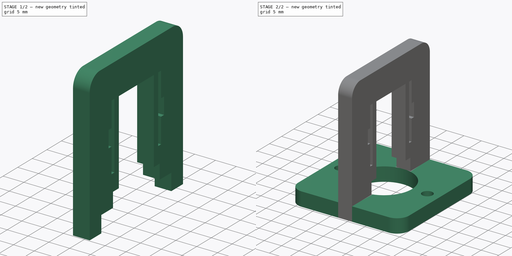
[diagram: build sequence overview — one tinted view per stage of 2, left to right]
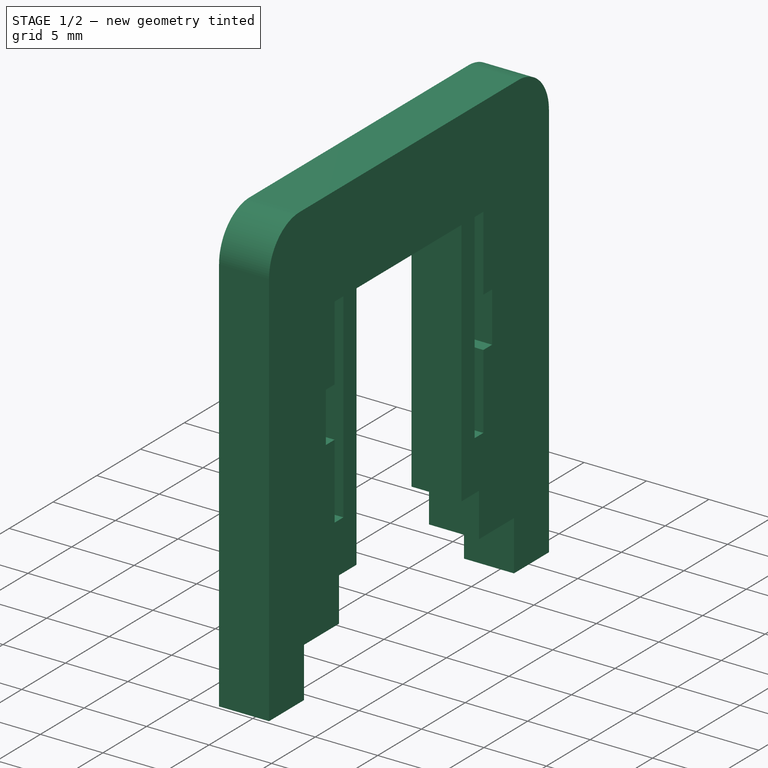
[diagram: stage 1 of 2 — iso view after this stage's code; geometry added in this stage tinted green]
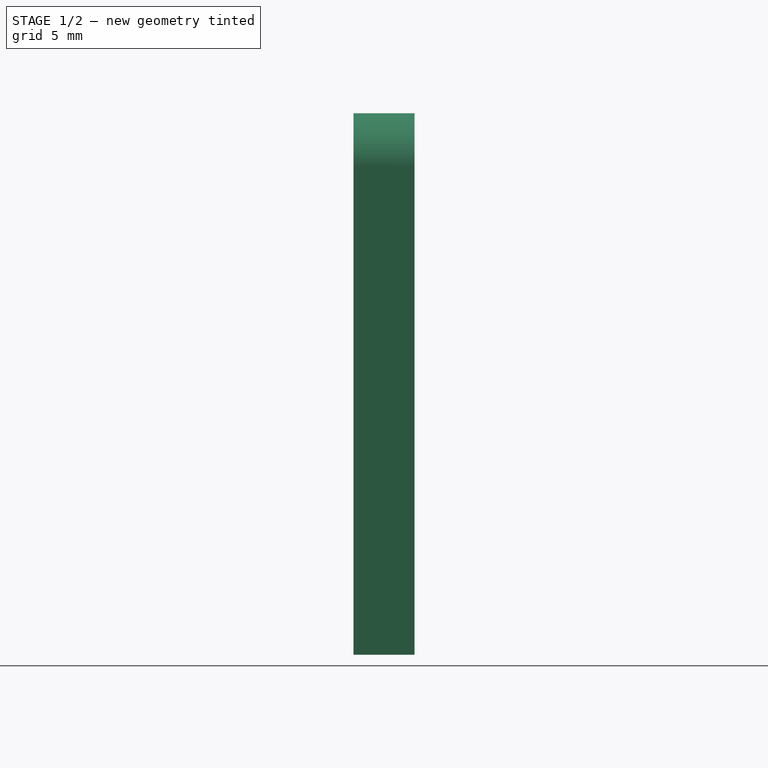
[diagram: stage 1 of 2 — front view after this stage's code; geometry added in this stage tinted green]
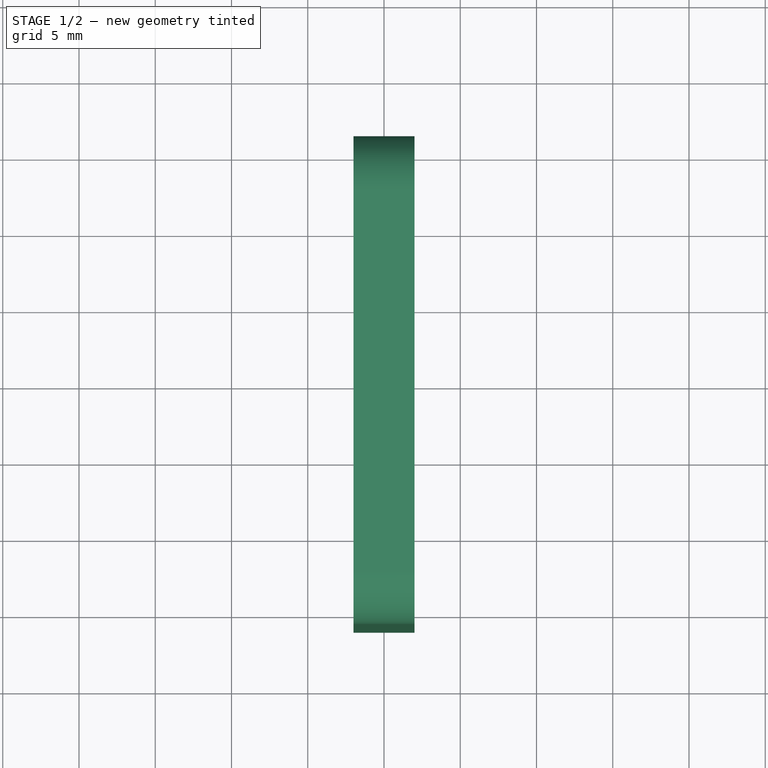
[diagram: stage 1 of 2 — top view after this stage's code; geometry added in this stage tinted green]
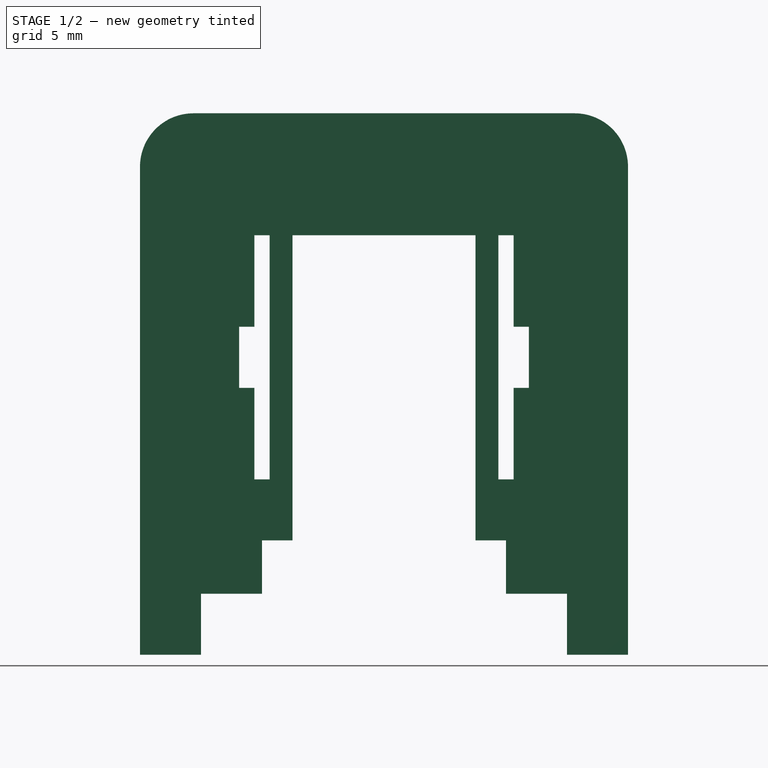
[diagram: stage 1 of 2 — right view after this stage's code; geometry added in this stage tinted green]
FCSTD DOCUMENT  (FreeCAD 0.19R24291 (Git))
Label: sibi_motor-mount
License: All rights reserved
LicenseURL: http://en.wikipedia.org/wiki/All_rights_reserved
objects: Sketcher::SketchObject×2, PartDesign::Pad×2, PartDesign::Body×2, App::Part×2, TechDraw::DrawViewPart×2, TechDraw::DrawSVGTemplate×1, TechDraw::DrawPage×1
note: 8 computed .brp shape members not serialized (recipe doc carries the construction recipe); baked Part::Feature solids carry a one-line shape summary decoded from their .brp

FEATURE [PartDesign::Body] Body
  Group = -> [Sketch,Pad]
  Origin = -> Origin001
  Tip = -> Pad
FEATURE [App::Part] Part  label="Baseplate"
  Group = -> [Body]
  Origin = -> Origin
FEATURE [Sketcher::SketchObject] Sketch002
  FullyConstrained = true
  MapMode = 5
  Placement = pos=(0,0,0) rot=(0.57735,0.57735,0.57735;2.0944rad)
  Support = -> [YZ_Plane005]
  sketch-geometry (34):
    g0: LineSegment StartX=-16 StartY=0 StartZ=0 EndX=-12 EndY=0 EndZ=0
    g1: LineSegment StartX=16 StartY=0 StartZ=0 EndX=16 EndY=32 EndZ=0
    g2: LineSegment StartX=12.5 StartY=35.5 StartZ=0 EndX=-12.5 EndY=35.5 EndZ=0
    g3: LineSegment StartX=-16 StartY=32 StartZ=0 EndX=-16 EndY=0 EndZ=0
    g4: LineSegment StartX=12 StartY=0 StartZ=0 EndX=12 EndY=4 EndZ=0
    g5: LineSegment StartX=12 StartY=4 StartZ=0 EndX=8 EndY=4 EndZ=0
    g6: LineSegment StartX=-12 StartY=4 StartZ=0 EndX=-12 EndY=0 EndZ=0
    g7: LineSegment StartX=12 StartY=0 StartZ=0 EndX=16 EndY=0 EndZ=0
    g8: LineSegment StartX=8 StartY=4 StartZ=0 EndX=8 EndY=7.5 EndZ=0
    g9: LineSegment StartX=8 StartY=7.5 StartZ=0 EndX=6 EndY=7.5 EndZ=0
    g10: LineSegment StartX=-8 StartY=7.5 StartZ=0 EndX=-8 EndY=4 EndZ=0
    g11: LineSegment StartX=6 StartY=7.5 StartZ=0 EndX=6 EndY=27.5 EndZ=0
    g12: LineSegment StartX=6 StartY=27.5 StartZ=0 EndX=-6 EndY=27.5 EndZ=0
    g13: LineSegment StartX=-6 StartY=27.5 StartZ=0 EndX=-6 EndY=7.5 EndZ=0
    g14: LineSegment StartX=-6 StartY=7.5 StartZ=0 EndX=-8 EndY=7.5 EndZ=0
    g15: LineSegment StartX=-8 StartY=4 StartZ=0 EndX=-12 EndY=4 EndZ=0
    g16: ArcOfCircle CenterX=12.5 CenterY=32 CenterZ=0 NormalX=0 NormalY=0 NormalZ=1 AngleXU=0 Radius=3.5 StartAngle=0 EndAngle=1.5708
    g17: ArcOfCircle CenterX=-12.5 CenterY=32 CenterZ=0 NormalX=0 NormalY=0 NormalZ=1 AngleXU=0 Radius=3.5 StartAngle=1.5708 EndAngle=3.14159
    g18: LineSegment StartX=-8.5 StartY=27.5 StartZ=0 EndX=-7.5 EndY=27.5 EndZ=0
    g19: LineSegment StartX=-7.5 StartY=27.5 StartZ=0 EndX=-7.5 EndY=11.5 EndZ=0
    g20: LineSegment StartX=-7.5 StartY=11.5 StartZ=0 EndX=-8.5 EndY=11.5 EndZ=0
    g21: LineSegment StartX=-8.5 StartY=11.5 StartZ=0 EndX=-8.5 EndY=17.5 EndZ=0
    g22: LineSegment StartX=7.5 StartY=27.5 StartZ=0 EndX=8.5 EndY=27.5 EndZ=0
    g23: LineSegment StartX=8.5 StartY=27.5 StartZ=0 EndX=8.5 EndY=21.5 EndZ=0
    g24: LineSegment StartX=8.5 StartY=11.5 StartZ=0 EndX=7.5 EndY=11.5 EndZ=0
    g25: LineSegment StartX=7.5 StartY=11.5 StartZ=0 EndX=7.5 EndY=27.5 EndZ=0
    g26: LineSegment StartX=-9.5 StartY=21.5 StartZ=0 EndX=-8.5 EndY=21.5 EndZ=0
    g27: LineSegment StartX=-8.5 StartY=17.5 StartZ=0 EndX=-9.5 EndY=17.5 EndZ=0
    g28: LineSegment StartX=-9.5 StartY=17.5 StartZ=0 EndX=-9.5 EndY=21.5 EndZ=0
    g29: LineSegment StartX=8.5 StartY=21.5 StartZ=0 EndX=9.5 EndY=21.5 EndZ=0
    g30: LineSegment StartX=9.5 StartY=21.5 StartZ=0 EndX=9.5 EndY=17.5 EndZ=0
    g31: LineSegment StartX=9.5 StartY=17.5 StartZ=0 EndX=8.5 EndY=17.5 EndZ=0
    g32: LineSegment StartX=-8.5 StartY=21.5 StartZ=0 EndX=-8.5 EndY=27.5 EndZ=0
    g33: LineSegment StartX=8.5 StartY=17.5 StartZ=0 EndX=8.5 EndY=11.5 EndZ=0
  constraints (89):
    c: Coincident(g7,g1)
    c: Coincident(g3,g0)
    c: Horizontal(g0)
    c: Horizontal(g2)
    c: Vertical(g1)
    c: Vertical(g3)
    c: Coincident(g4,g5)
    c: Coincident(g15,g6)
    c: Horizontal(g5)
    c: Vertical(g4)
    c: Vertical(g6)
    c: Coincident(g0,g6)
    c: Coincident(g7,g4)
    c: Tangent(g0,g7)
    c: Coincident(g8,g9)
    c: Coincident(g14,g10)
    c: Horizontal(g9)
    c: Vertical(g8)
    c: Vertical(g10)
    c: Coincident(g11,g12)
    c: Coincident(g12,g13)
    c: Horizontal(g12)
    c: Vertical(g11)
    c: Vertical(g13)
    c: Coincident(g9,g11)
    c: Coincident(g14,g13)
    c: Tangent(g9,g14)
    c: Tangent(g5,g15)
    c: Coincident(g10,g15)
    c: Coincident(g8,g5)
    c: Equal(g0,g7)
    c: Equal(g15,g5)
    c: Equal(g14,g9)
    c: DistanceX(g12,g12) = 12
    c: DistanceX(g10,g8) = 16
    c: DistanceX(g0,g0) = 4
    c: DistanceY(g4,g4) = 4
    c: DistanceY(g1,g8) = 7.5
    c: DistanceY(g1,g11) = 27.5
    c: Tangent(g2,g16) = -1.5708
    c: Tangent(g1,g16) = -1.5708
    c: Tangent(g2,g17) = -1.5708
    c: Tangent(g3,g17) = -1.5708
    c: Equal(g17,g16)
    c: DistanceX(g0,g1) = 32
    c: Symmetric(g0,g1,g-1)
    c: Radius(g16) = 3.5
    c: DistanceY(g11,g2) = 8
    c: Coincident(g18,g19)
    c: Coincident(g19,g20)
    c: Coincident(g20,g21)
    c: Coincident(g32,g18)
    c: Horizontal(g20)
    c: Vertical(g19)
    c: Vertical(g21)
    c: Coincident(g22,g23)
    c: Coincident(g33,g24)
    c: Coincident(g24,g25)
    c: Coincident(g25,g22)
    c: Vertical(g23)
    c: Vertical(g25)
    c: Tangent(g18,g12)
    c: Tangent(g22,g12)
    c: Tangent(g20,g24)
    c: DistanceY(g20,g18) = 16
    c: DistanceX(g18,g12) = 1.5
    c: Coincident(g27,g28)
    c: Coincident(g28,g26)
    c: Horizontal(g26)
    c: Horizontal(g27)
    c: Vertical(g28)
    c: Coincident(g29,g30)
    c: Coincident(g30,g31)
    c: Vertical(g30)
    c: Tangent(g21,g32)
    c: Coincident(g26,g32)
    c: Coincident(g27,g21)
    c: Tangent(g23,g33)
    c: Coincident(g29,g23)
    c: Coincident(g31,g33)
    c: Equal(g26,g29)
    c: Tangent(g26,g29)
    c: Tangent(g27,g31)
    c: DistanceY(g28,g28) = 4
    c: Equal(g32,g21)
    c: DistanceX(g26,g26) = 1
    c: DistanceX(g18,g18) = 1
    c: DistanceX(g11,g22) = 1.5
    c: Equal(g18,g22)
FEATURE [PartDesign::Pad] Pad001
  Direction = (1,1,1)
  Length = 2
  Length2 = 2
  Placement = pos=(0,0,0) rot=(0.57735,0.57735,0.57735;2.0944rad)
  Profile = -> Sketch002
  Refine = true
  Type = 4
FEATURE [PartDesign::Body] Body002
  Group = -> [Sketch002,Pad001]
  Origin = -> Origin005
  Tip = -> Pad001
FEATURE [App::Part] Part002  label="Bracket"
  Group = -> [Body002]
  Origin = -> Origin004
FEATURE [TechDraw::DrawSVGTemplate] Template
  Height = 210
  Orientation = 1
  Width = 297
FEATURE [TechDraw::DrawViewPart] View
  CoarseView = false
  Direction = (0,0,1)
  Focus = 100
  HardHidden = false
  IsoCount = 0
  IsoHidden = false
  IsoVisible = false
  LockPosition = false
  Perspective = false
  Rotation = 0
  ScaleType = 0
  SeamHidden = false
  SeamVisible = true
  SmoothHidden = false
  SmoothVisible = true
  Source = -> [Part]
  X = 28.9139
  XDirection = (0,1,0)
  Y = 184.42
FEATURE [TechDraw::DrawViewPart] View001
  CoarseView = false
  Direction = (1,0,0)
  Focus = 100
  HardHidden = false
  IsoCount = 0
  IsoHidden = false
  IsoVisible = false
  LockPosition = false
  Perspective = false
  Rotation = 0
  ScaleType = 0
  SeamHidden = false
  SeamVisible = true
  SmoothHidden = false
  SmoothVisible = true
  Source = -> [Part002]
  X = 66.6459
  XDirection = (0,1,0)
  Y = 182.594
FEATURE [TechDraw::DrawPage] Page
  KeepUpdated = true
  NextBalloonIndex = 1
  ProjectionType = 0
  Template = -> Template
  Views = -> [View,View001]
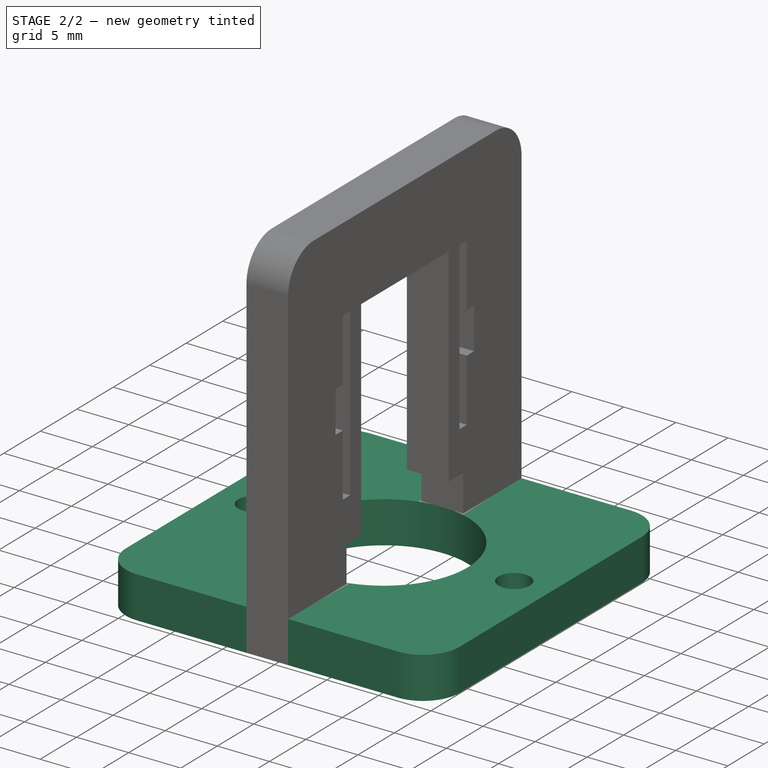
[diagram: stage 2 of 2 — iso view after this stage's code; geometry added in this stage tinted green]
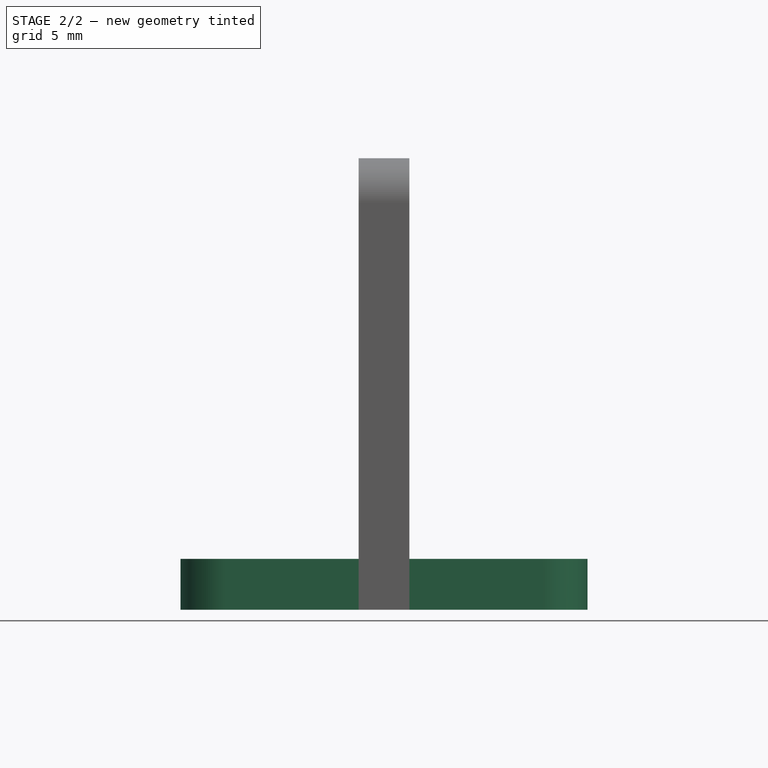
[diagram: stage 2 of 2 — front view after this stage's code; geometry added in this stage tinted green]
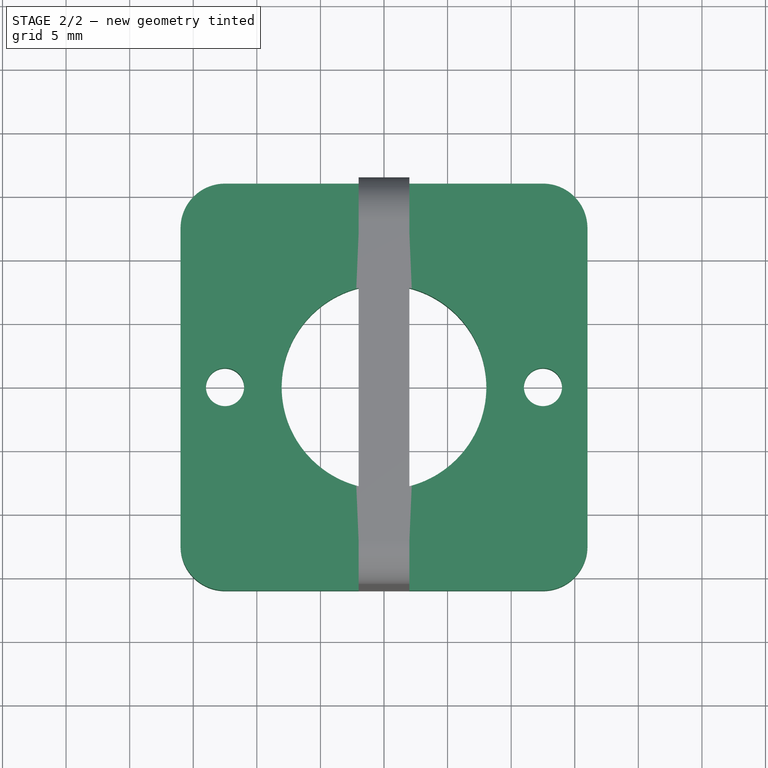
[diagram: stage 2 of 2 — top view after this stage's code; geometry added in this stage tinted green]
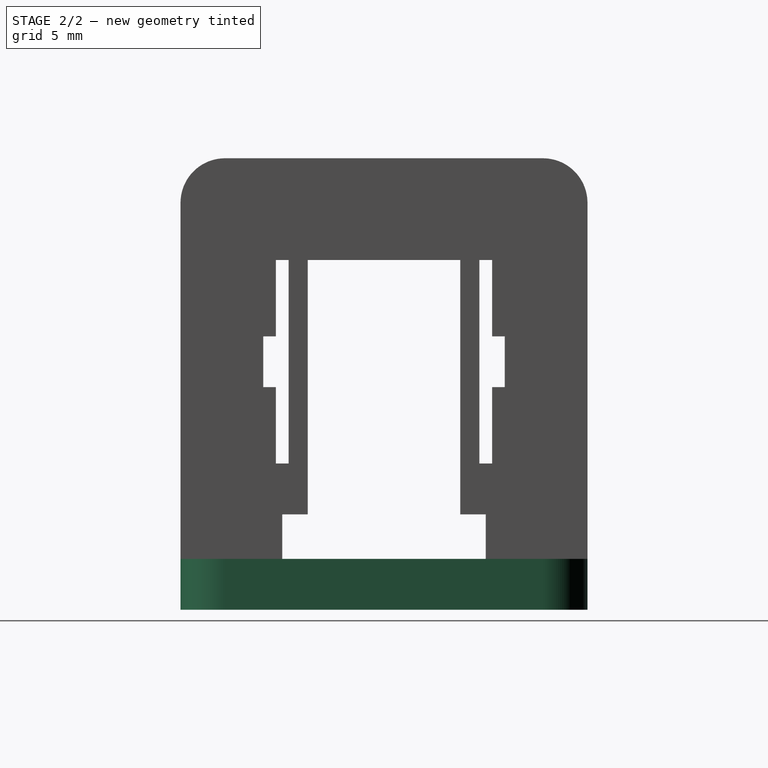
[diagram: stage 2 of 2 — right view after this stage's code; geometry added in this stage tinted green]
FEATURE [Sketcher::SketchObject] Sketch
  FullyConstrained = true
  MapMode = 5
  Support = -> [XY_Plane001]
  sketch-geometry (19):
    g0: LineSegment StartX=-12.5 StartY=16 StartZ=0 EndX=-2 EndY=16 EndZ=0
    g1: LineSegment StartX=16 StartY=12.5 StartZ=0 EndX=16 EndY=-12.5 EndZ=0
    g2: LineSegment StartX=12.5 StartY=-16 StartZ=0 EndX=2 EndY=-16 EndZ=0
    g3: LineSegment StartX=-16 StartY=-12.5 StartZ=0 EndX=-16 EndY=12.5 EndZ=0
    g4: ArcOfCircle CenterX=12.5 CenterY=12.5 CenterZ=0 NormalX=0 NormalY=0 NormalZ=1 AngleXU=0 Radius=3.5 StartAngle=0 EndAngle=1.5708
    g5: ArcOfCircle CenterX=12.5 CenterY=-12.5 CenterZ=0 NormalX=0 NormalY=0 NormalZ=1 AngleXU=0 Radius=3.5 StartAngle=4.71239 EndAngle=6.28319
    g6: ArcOfCircle CenterX=-12.5 CenterY=-12.5 CenterZ=0 NormalX=0 NormalY=0 NormalZ=1 AngleXU=0 Radius=3.5 StartAngle=3.14159 EndAngle=4.71239
    g7: ArcOfCircle CenterX=-12.5 CenterY=12.5 CenterZ=0 NormalX=0 NormalY=0 NormalZ=1 AngleXU=0 Radius=3.5 StartAngle=1.5708 EndAngle=3.14159
    g8: Circle CenterX=0 CenterY=0 CenterZ=0 NormalX=0 NormalY=0 NormalZ=1 AngleXU=0 Radius=8.05
    g9: LineSegment StartX=2 StartY=16 StartZ=0 EndX=2 EndY=12 EndZ=0
    g10: LineSegment StartX=-2 StartY=12 StartZ=0 EndX=-2 EndY=16 EndZ=0
    g11: LineSegment StartX=2 StartY=-16 StartZ=0 EndX=2 EndY=-12 EndZ=0
    g12: LineSegment StartX=2 StartY=-12 StartZ=0 EndX=-2 EndY=-12 EndZ=0
    g13: LineSegment StartX=-2 StartY=-12 StartZ=0 EndX=-2 EndY=-16 EndZ=0
    g14: LineSegment StartX=2 StartY=16 StartZ=0 EndX=12.5 EndY=16 EndZ=0
    g15: LineSegment StartX=-2 StartY=-16 StartZ=0 EndX=-12.5 EndY=-16 EndZ=0
    g16: Circle CenterX=-12.5 CenterY=-3e-16 CenterZ=0 NormalX=0 NormalY=0 NormalZ=1 AngleXU=0 Radius=1.5
    g17: Circle CenterX=12.5 CenterY=-3e-16 CenterZ=0 NormalX=0 NormalY=0 NormalZ=1 AngleXU=0 Radius=1.5
    g18: LineSegment StartX=-2 StartY=12 StartZ=0 EndX=2 EndY=12 EndZ=0
  constraints (49):
    c: Horizontal(g0)
    c: Horizontal(g2)
    c: Vertical(g1)
    c: Vertical(g3)
    c: Coincident(g14,g4) = 1.5708
    c: Tangent(g1,g4) = 1.5708
    c: Tangent(g1,g5) = 1.5708
    c: Tangent(g2,g5) = 1.5708
    c: Coincident(g15,g6) = 1.5708
    c: Tangent(g3,g6) = 1.5708
    c: Tangent(g3,g7) = 1.5708
    c: Tangent(g0,g7) = 1.5708
    c: Coincident(g8,g-1)
    c: DistanceX(g7,g4) = 25
    c: DistanceX(g6,g7) = 0
    c: DistanceX(g4,g5) = 0
    c: DistanceY(g5,g4) = 25
    c: DistanceY(g7,g4) = 0
    c: Radius(g4) = 3.5
    c: Symmetric(g6,g4,g8)
    c: Diameter(g8) = 16.1
    c: Vertical(g9)
    c: Vertical(g10)
    c: Coincident(g11,g12)
    c: Coincident(g12,g13)
    c: Horizontal(g12)
    c: Vertical(g11)
    c: Vertical(g13)
    c: Tangent(g0,g14)
    c: Coincident(g10,g0)
    c: Coincident(g9,g14)
    c: Tangent(g2,g15)
    c: Coincident(g13,g15)
    c: Coincident(g11,g2)
    c: Equal(g0,g14)
    c: Equal(g0,g15)
    c: Equal(g15,g2)
    c: Equal(g10,g13)
    c: DistanceX(g0,g9) = 4
    c: DistanceY(g9,g9) = 4
    c: Equal(g4,g7)
    c: Equal(g16,g17)
    c: Diameter(g16) = 3
    c: DistanceY(g17,g16) = 0
    c: Symmetric(g7,g6,g16)
    c: Symmetric(g4,g5,g17)
    c: Coincident(g18,g10)
    c: Coincident(g18,g9)
    c: Horizontal(g18)
FEATURE [PartDesign::Pad] Pad
  Direction = (1,1,1)
  Length = 4
  Length2 = 100
  Profile = -> Sketch
  Refine = true
  Type = 0
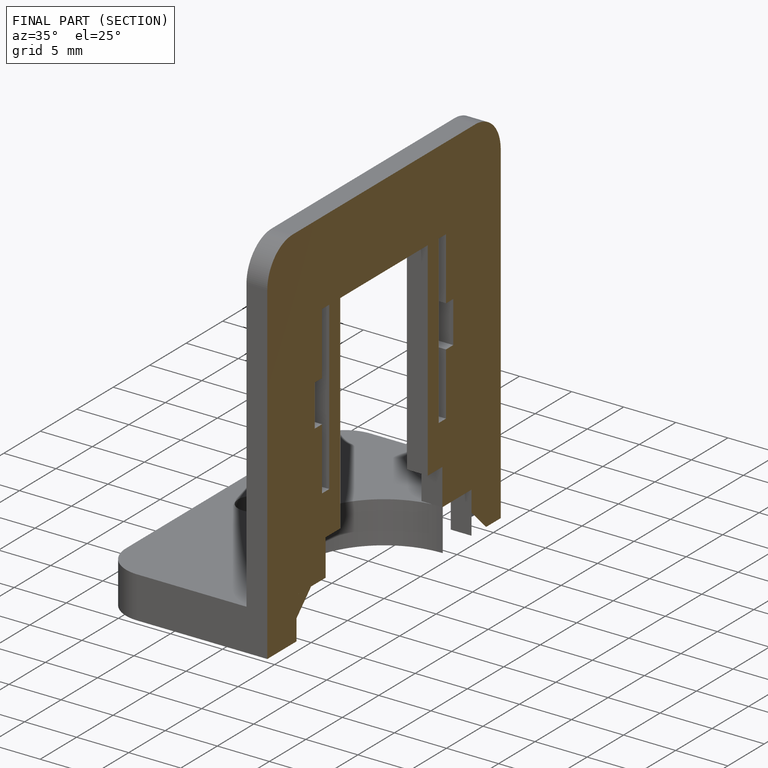
[diagram: finished part — half-section view (interior)]
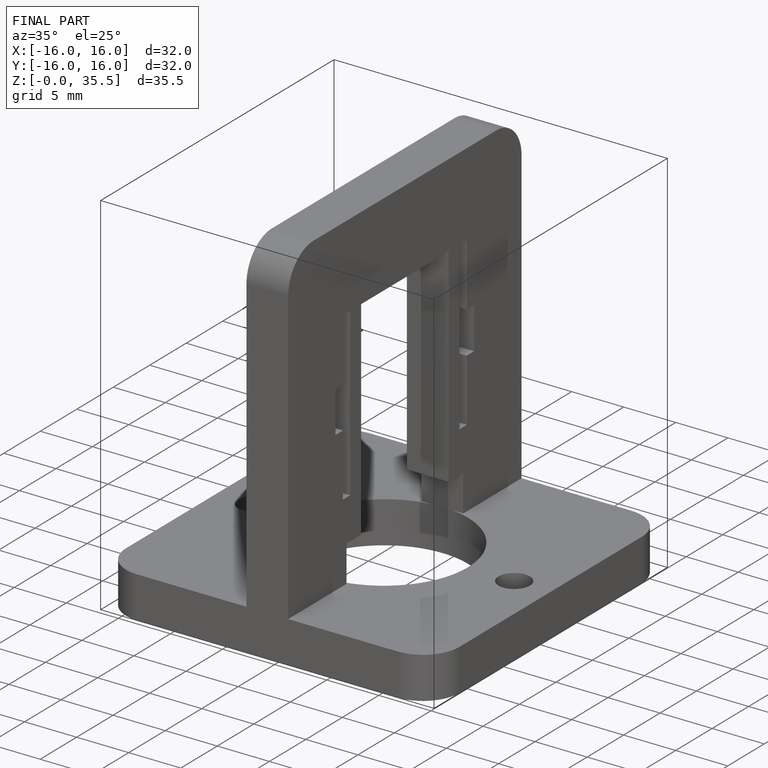
[diagram: finished part — iso view with bounding-box wireframe]
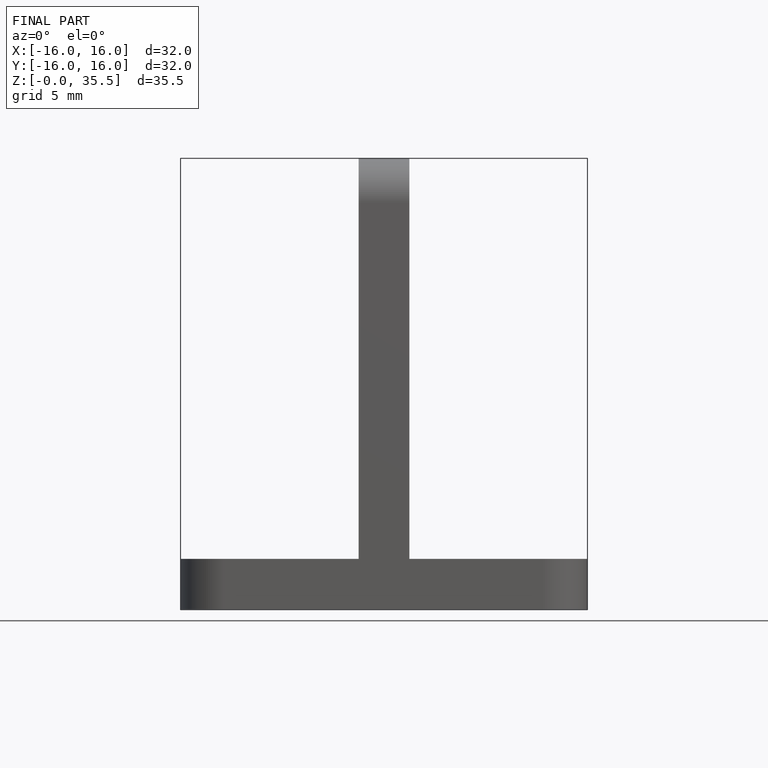
[diagram: finished part — front view with bounding-box wireframe]
